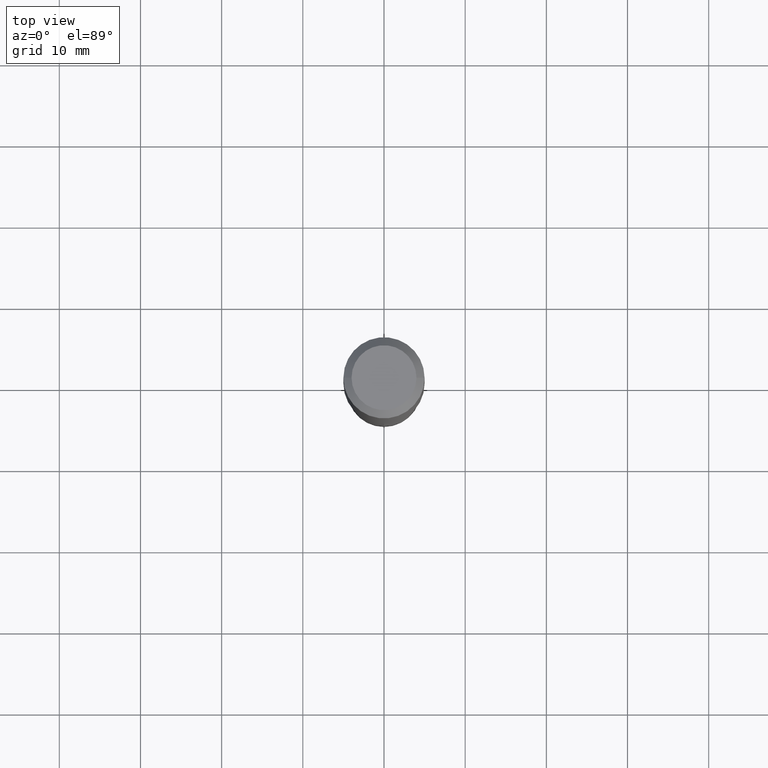
[diagram: clean part render]
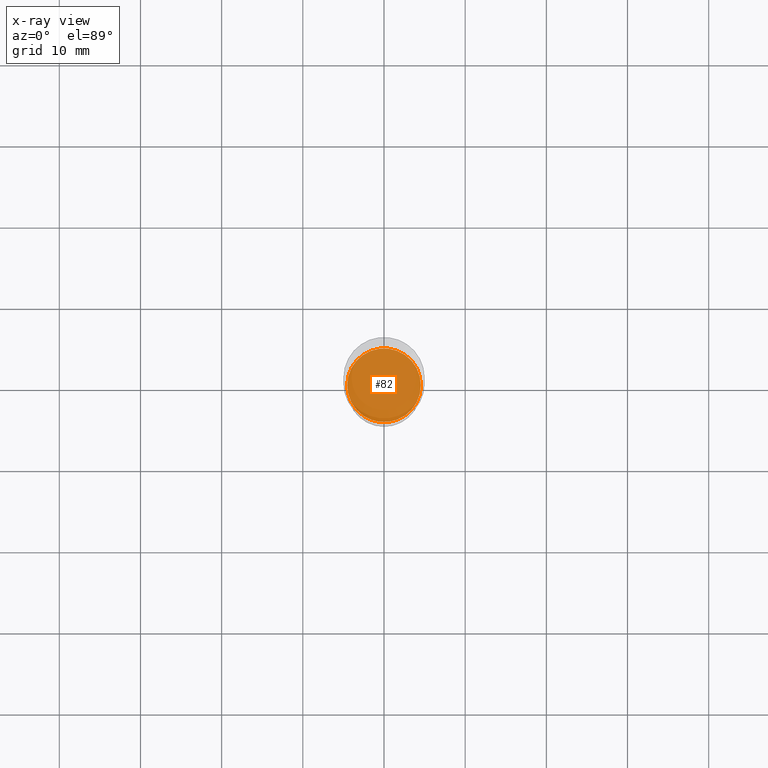
[diagram: x-ray — body ghosted, one internal face saturated and labeled with its STEP entity id]
A machine part, top view, then the same camera in x-ray: the body is ghosted and one INTERNAL B-rep face — a face not visible from any outside direction — is saturated and labeled: STEP entity #82.
In plain terms, the highlighted planar face has unit normal (-0, 0, 1).
Its self-contained STEP definition (entity closure, byte-faithful):
#31 = CARTESIAN_POINT ( 'NONE',  ( -0.1786500000000000310, -6.150506353637112321E-15, -2.125899999999999679 ) ) ;
#56 = AXIS2_PLACEMENT_3D ( 'NONE', #389, #132, #252 ) ;
#76 = CIRCLE ( 'NONE', #143, 0.1786500000000000310 ) ;
#79 = FACE_OUTER_BOUND ( 'NONE', #297, .T. ) ;
#82 = ADVANCED_FACE ( 'NONE', ( #79 ), #458, .F. ) ;
#123 = DIRECTION ( 'NONE',  ( -2.438088387897960049E-29, 3.491481338843145188E-15, 1.000000000000000000 ) ) ;
#125 = DIRECTION ( 'NONE',  ( 1.000000000000000000, -6.982962677686265922E-15, 4.876176775795935793E-29 ) ) ;
#132 = DIRECTION ( 'NONE',  ( -2.445468806185136597E-29, 3.491481338843145583E-15, 1.000000000000000000 ) ) ;
#136 = EDGE_CURVE ( 'NONE', #411, #284, #344, .T. ) ;
#143 = AXIS2_PLACEMENT_3D ( 'NONE', #195, #315, #417 ) ;
#195 = CARTESIAN_POINT ( 'NONE',  ( 5.198822135068982087E-29, -7.422540178246643119E-15, -2.125899999999999679 ) ) ;
#252 = DIRECTION ( 'NONE',  ( 1.000000000000000000, -6.982962677686263555E-15, 0.000000000000000000 ) ) ;
#274 = CARTESIAN_POINT ( 'NONE',  ( 5.198822135068982087E-29, -7.422540178246643119E-15, -2.125899999999999679 ) ) ;
#284 = VERTEX_POINT ( 'NONE', #31 ) ;
#297 = EDGE_LOOP ( 'NONE', ( #407, #459 ) ) ;
#315 = DIRECTION ( 'NONE',  ( -2.445468806185136597E-29, 3.491481338843145583E-15, 1.000000000000000000 ) ) ;
#344 = CIRCLE ( 'NONE', #56, 0.1786500000000000310 ) ;
#389 = CARTESIAN_POINT ( 'NONE',  ( 5.198822135068982087E-29, -7.422540178246643119E-15, -2.125899999999999679 ) ) ;
#407 = ORIENTED_EDGE ( 'NONE', *, *, #136, .F. ) ;
#411 = VERTEX_POINT ( 'NONE', #450 ) ;
#417 = DIRECTION ( 'NONE',  ( 1.000000000000000000, -6.982962677686263555E-15, 0.000000000000000000 ) ) ;
#445 = EDGE_CURVE ( 'NONE', #284, #411, #76, .T. ) ;
#450 = CARTESIAN_POINT ( 'NONE',  ( 0.1786500000000000310, -8.670046460615294534E-15, -2.125899999999999679 ) ) ;
#458 = PLANE ( 'NONE',  #488 ) ;
#459 = ORIENTED_EDGE ( 'NONE', *, *, #445, .F. ) ;
#488 = AXIS2_PLACEMENT_3D ( 'NONE', #274, #123, #125 ) ;